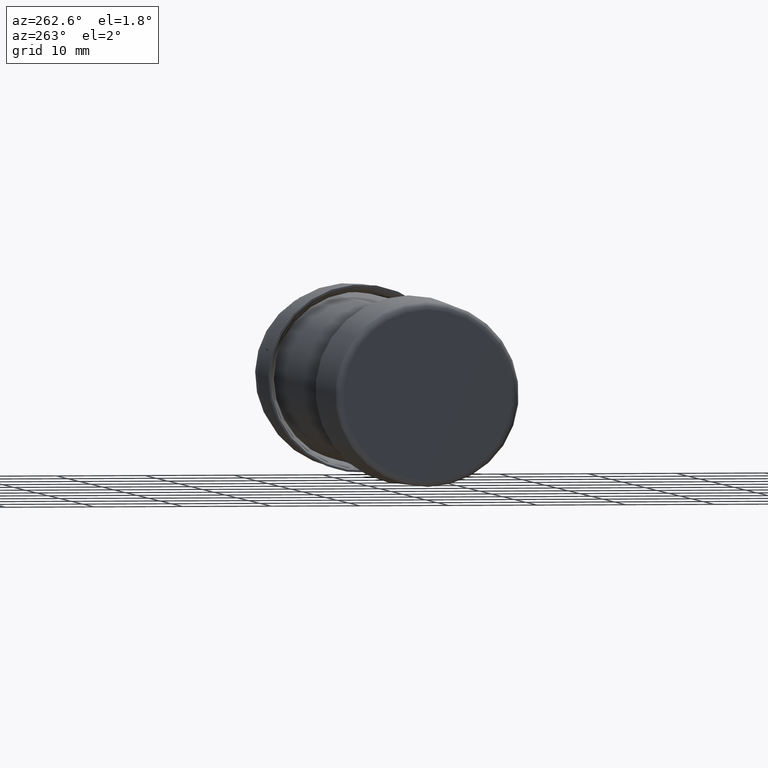
[diagram: clean part render]
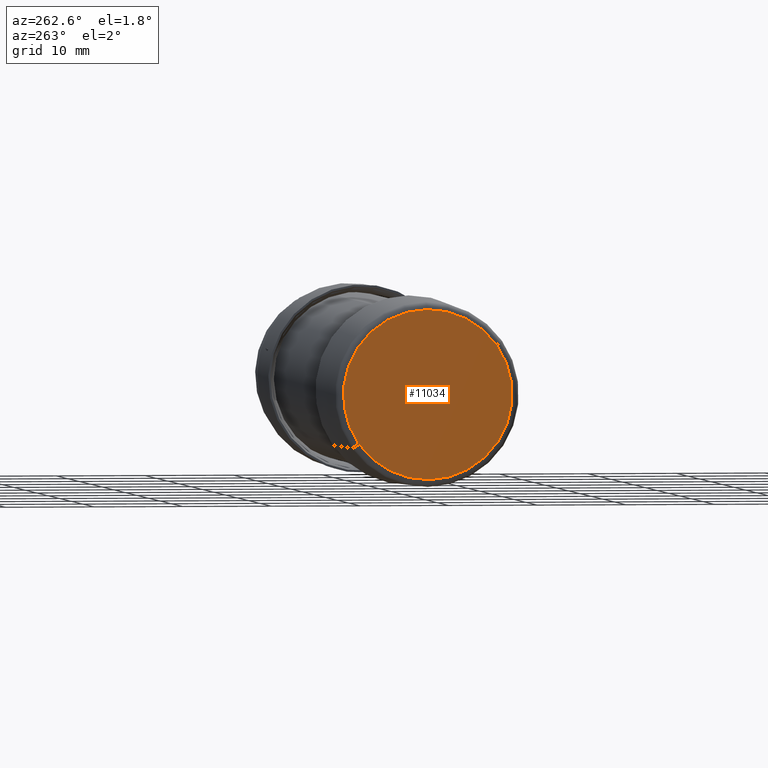
[diagram: same view with one face highlighted and labeled with its STEP entity id]
A machine part, auxiliary view. The second image highlights one B-rep face of the part: STEP entity #11034.
In plain terms, the highlighted planar face has unit normal (-1, -0, 0).
Its self-contained STEP definition (entity closure, byte-faithful):
#752 = DIRECTION ( 'NONE',  ( 0.0000000000000000000, 0.8159477399572706600, -0.5781256659746411000 ) ) ;
#2039 = CARTESIAN_POINT ( 'NONE',  ( -1.254258279986951900, -0.3039749957116355000, 0.2153762284391287400 ) ) ;
#2133 = CIRCLE ( 'NONE', #7165, 0.3749999999999999400 ) ;
#2284 = CARTESIAN_POINT ( 'NONE',  ( -1.254258279986952200, 0.3059804024839763400, -0.2167971247404903400 ) ) ;
#2407 = CARTESIAN_POINT ( 'NONE',  ( -1.254258279986952200, -0.3059804024839766200, 0.2167971247404903400 ) ) ;
#3262 = CIRCLE ( 'NONE', #5507, 0.3749999999999999400 ) ;
#3737 = DIRECTION ( 'NONE',  ( -1.781464061670178700E-016, 0.8159477399572705500, -0.5781256659746409900 ) ) ;
#5380 = DIRECTION ( 'NONE',  ( -1.000000000000000000, -1.700911416085063300E-016, 6.808368128484296700E-017 ) ) ;
#5413 = DIRECTION ( 'NONE',  ( -1.000000000000000000, -1.700911416085063300E-016, 6.808368128484296700E-017 ) ) ;
#5466 = AXIS2_PLACEMENT_3D ( 'NONE', #2039, #6462, #3737 ) ;
#5507 = AXIS2_PLACEMENT_3D ( 'NONE', #12023, #5413, #752 ) ;
#5533 = FACE_OUTER_BOUND ( 'NONE', #5594, .T. ) ;
#5594 = EDGE_LOOP ( 'NONE', ( #11784, #10151 ) ) ;
#5617 = EDGE_CURVE ( 'NONE', #10676, #8031, #2133, .T. ) ;
#6004 = EDGE_CURVE ( 'NONE', #8031, #10676, #3262, .T. ) ;
#6462 = DIRECTION ( 'NONE',  ( -1.000000000000000000, -1.700911416085063500E-016, 6.808368128484298000E-017 ) ) ;
#7165 = AXIS2_PLACEMENT_3D ( 'NONE', #11988, #5380, #11076 ) ;
#8031 = VERTEX_POINT ( 'NONE', #2407 ) ;
#8361 = PLANE ( 'NONE',  #5466 ) ;
#10151 = ORIENTED_EDGE ( 'NONE', *, *, #6004, .T. ) ;
#10676 = VERTEX_POINT ( 'NONE', #2284 ) ;
#11034 = ADVANCED_FACE ( 'NONE', ( #5533 ), #8361, .T. ) ;
#11076 = DIRECTION ( 'NONE',  ( 0.0000000000000000000, 0.8159477399572706600, -0.5781256659746411000 ) ) ;
#11784 = ORIENTED_EDGE ( 'NONE', *, *, #5617, .T. ) ;
#11988 = CARTESIAN_POINT ( 'NONE',  ( -1.254258279986952200, -1.117848628476773300E-016, 1.875728150213371200E-017 ) ) ;
#12023 = CARTESIAN_POINT ( 'NONE',  ( -1.254258279986952200, -1.117848628476773300E-016, 1.875728150213371200E-017 ) ) ;